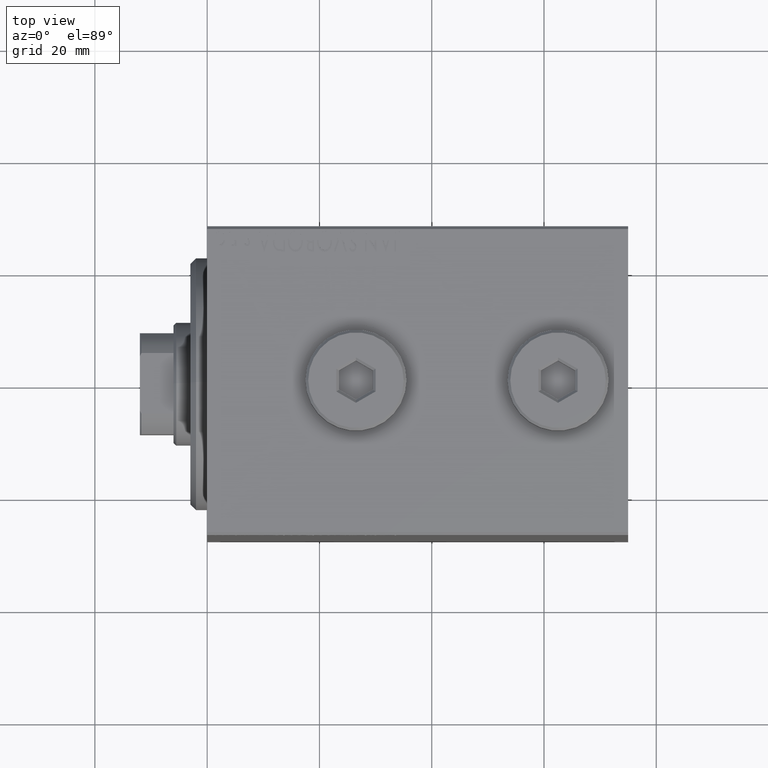
[diagram: clean part render]
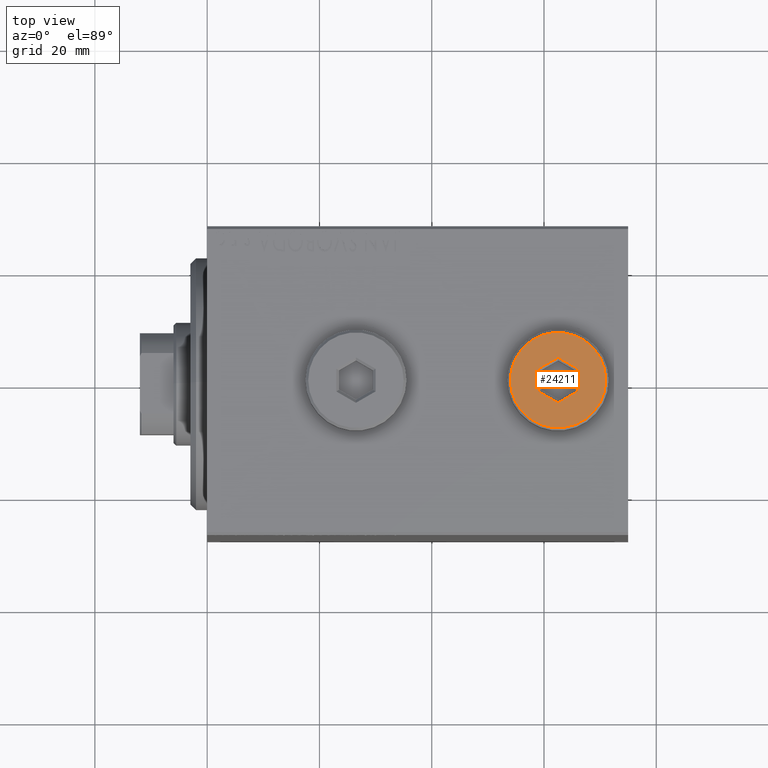
[diagram: same view with one face highlighted and labeled with its STEP entity id]
A machine part, top view. The second image highlights one B-rep face of the part: STEP entity #24211.
In plain terms, the highlighted planar face has unit normal (0, 0, 1).
Its self-contained STEP definition (entity closure, byte-faithful):
#184 = LINE ( 'NONE', #27843, #17023 ) ;
#804 = EDGE_CURVE ( 'NONE', #1616, #29007, #19886, .T. ) ;
#1124 = ORIENTED_EDGE ( 'NONE', *, *, #29422, .T. ) ;
#1616 = VERTEX_POINT ( 'NONE', #34992 ) ;
#2161 = CARTESIAN_POINT ( 'NONE',  ( 3.500000000000006661, 2.020725942163694722, 5.000000000000000000 ) ) ;
#3945 = CARTESIAN_POINT ( 'NONE',  ( 0.2500000000000027756, -3.897114317029979347, 5.000000000000000000 ) ) ;
#3960 = FACE_BOUND ( 'NONE', #23649, .T. ) ;
#4147 = EDGE_CURVE ( 'NONE', #14748, #9146, #184, .T. ) ;
#4234 = VECTOR ( 'NONE', #16841, 1000.000000000000000 ) ;
#5091 = CARTESIAN_POINT ( 'NONE',  ( -3.500000000000006661, 2.020725942163692945, 5.000000000000000000 ) ) ;
#5219 = ORIENTED_EDGE ( 'NONE', *, *, #804, .T. ) ;
#5841 = CARTESIAN_POINT ( 'NONE',  ( -1.006139216460143630E-15, -4.041451884327387667, 5.000000000000000000 ) ) ;
#6228 = VERTEX_POINT ( 'NONE', #21477 ) ;
#7413 = CARTESIAN_POINT ( 'NONE',  ( 0.000000000000000000, 0.000000000000000000, 5.000000000000000000 ) ) ;
#8131 = DIRECTION ( 'NONE',  ( 0.000000000000000000, 0.000000000000000000, 1.000000000000000000 ) ) ;
#9146 = VERTEX_POINT ( 'NONE', #24163 ) ;
#9848 = LINE ( 'NONE', #37943, #24462 ) ;
#10104 = DIRECTION ( 'NONE',  ( 0.000000000000000000, -1.000000000000000000, 0.000000000000000000 ) ) ;
#10143 = LINE ( 'NONE', #20972, #25800 ) ;
#10325 = EDGE_CURVE ( 'NONE', #23660, #14748, #9848, .T. ) ;
#10371 = DIRECTION ( 'NONE',  ( 0.8660254037844387076, 0.4999999999999998335, 0.000000000000000000 ) ) ;
#11230 = EDGE_LOOP ( 'NONE', ( #5219, #22786 ) ) ;
#12611 = ORIENTED_EDGE ( 'NONE', *, *, #4147, .T. ) ;
#13534 = DIRECTION ( 'NONE',  ( 0.8660254037844387076, -0.4999999999999998890, 0.000000000000000000 ) ) ;
#14731 = VERTEX_POINT ( 'NONE', #5841 ) ;
#14748 = VERTEX_POINT ( 'NONE', #2161 ) ;
#15123 = AXIS2_PLACEMENT_3D ( 'NONE', #36244, #8131, #22178 ) ;
#15274 = LINE ( 'NONE', #25640, #23463 ) ;
#16841 = DIRECTION ( 'NONE',  ( 0.000000000000000000, 1.000000000000000000, 0.000000000000000000 ) ) ;
#17023 = VECTOR ( 'NONE', #10104, 1000.000000000000000 ) ;
#18395 = CARTESIAN_POINT ( 'NONE',  ( 1.590596867181068292E-15, 4.041451884327386779, 5.000000000000000000 ) ) ;
#18795 = VECTOR ( 'NONE', #28149, 1000.000000000000000 ) ;
#18867 = AXIS2_PLACEMENT_3D ( 'NONE', #7413, #39431, #39199 ) ;
#19847 = LINE ( 'NONE', #34365, #4234 ) ;
#19886 = CIRCLE ( 'NONE', #42715, 8.500000000000010658 ) ;
#20972 = CARTESIAN_POINT ( 'NONE',  ( -0.2500000000000027756, 3.897114317029978459, 5.000000000000000000 ) ) ;
#21005 = CIRCLE ( 'NONE', #15123, 8.500000000000010658 ) ;
#21477 = CARTESIAN_POINT ( 'NONE',  ( -3.500000000000006661, -2.020725942163694278, 5.000000000000000000 ) ) ;
#21926 = EDGE_CURVE ( 'NONE', #29007, #1616, #21005, .T. ) ;
#22178 = DIRECTION ( 'NONE',  ( 1.000000000000000000, 0.000000000000000000, 0.000000000000000000 ) ) ;
#22240 = EDGE_CURVE ( 'NONE', #9146, #14731, #31842, .T. ) ;
#22560 = CARTESIAN_POINT ( 'NONE',  ( 0.000000000000000000, 0.000000000000000000, 5.000000000000000000 ) ) ;
#22786 = ORIENTED_EDGE ( 'NONE', *, *, #21926, .T. ) ;
#23463 = VECTOR ( 'NONE', #29111, 1000.000000000000114 ) ;
#23649 = EDGE_LOOP ( 'NONE', ( #33368, #32811, #41525, #12611, #42265, #1124 ) ) ;
#23660 = VERTEX_POINT ( 'NONE', #18395 ) ;
#24163 = CARTESIAN_POINT ( 'NONE',  ( 3.500000000000006661, -2.020725942163693833, 5.000000000000000000 ) ) ;
#24211 = ADVANCED_FACE ( 'NONE', ( #3960, #43117 ), #35973, .T. ) ;
#24462 = VECTOR ( 'NONE', #13534, 1000.000000000000000 ) ;
#25569 = EDGE_CURVE ( 'NONE', #6228, #34343, #19847, .T. ) ;
#25640 = CARTESIAN_POINT ( 'NONE',  ( -3.250000000000003109, -2.165063509461102598, 5.000000000000000000 ) ) ;
#25800 = VECTOR ( 'NONE', #10371, 1000.000000000000000 ) ;
#27843 = CARTESIAN_POINT ( 'NONE',  ( 3.500000000000006661, -1.732050807568878303, 5.000000000000000000 ) ) ;
#28149 = DIRECTION ( 'NONE',  ( -0.8660254037844387076, -0.4999999999999998890, 0.000000000000000000 ) ) ;
#29007 = VERTEX_POINT ( 'NONE', #30405 ) ;
#29111 = DIRECTION ( 'NONE',  ( -0.8660254037844385966, 0.4999999999999999445, 0.000000000000000000 ) ) ;
#29422 = EDGE_CURVE ( 'NONE', #14731, #6228, #15274, .T. ) ;
#29704 = DIRECTION ( 'NONE',  ( 0.000000000000000000, 0.000000000000000000, 1.000000000000000000 ) ) ;
#30405 = CARTESIAN_POINT ( 'NONE',  ( 8.500000000000010658, 1.071565949253934716E-15, 5.000000000000000000 ) ) ;
#31842 = LINE ( 'NONE', #3945, #18795 ) ;
#32811 = ORIENTED_EDGE ( 'NONE', *, *, #34510, .T. ) ;
#33368 = ORIENTED_EDGE ( 'NONE', *, *, #25569, .T. ) ;
#34343 = VERTEX_POINT ( 'NONE', #5091 ) ;
#34365 = CARTESIAN_POINT ( 'NONE',  ( -3.500000000000006661, 1.732050807568878081, 5.000000000000000000 ) ) ;
#34510 = EDGE_CURVE ( 'NONE', #34343, #23660, #10143, .T. ) ;
#34992 = CARTESIAN_POINT ( 'NONE',  ( -8.500000000000010658, 0.000000000000000000, 5.000000000000000000 ) ) ;
#35973 = PLANE ( 'NONE',  #18867 ) ;
#36244 = CARTESIAN_POINT ( 'NONE',  ( 0.000000000000000000, 0.000000000000000000, 5.000000000000000000 ) ) ;
#36612 = DIRECTION ( 'NONE',  ( 1.000000000000000000, 0.000000000000000000, 0.000000000000000000 ) ) ;
#37943 = CARTESIAN_POINT ( 'NONE',  ( 3.250000000000003109, 2.165063509461103042, 5.000000000000000000 ) ) ;
#39199 = DIRECTION ( 'NONE',  ( 1.000000000000000000, 0.000000000000000000, -0.000000000000000000 ) ) ;
#39431 = DIRECTION ( 'NONE',  ( 0.000000000000000000, 0.000000000000000000, 1.000000000000000000 ) ) ;
#41525 = ORIENTED_EDGE ( 'NONE', *, *, #10325, .T. ) ;
#42265 = ORIENTED_EDGE ( 'NONE', *, *, #22240, .T. ) ;
#42715 = AXIS2_PLACEMENT_3D ( 'NONE', #22560, #29704, #36612 ) ;
#43117 = FACE_OUTER_BOUND ( 'NONE', #11230, .T. ) ;